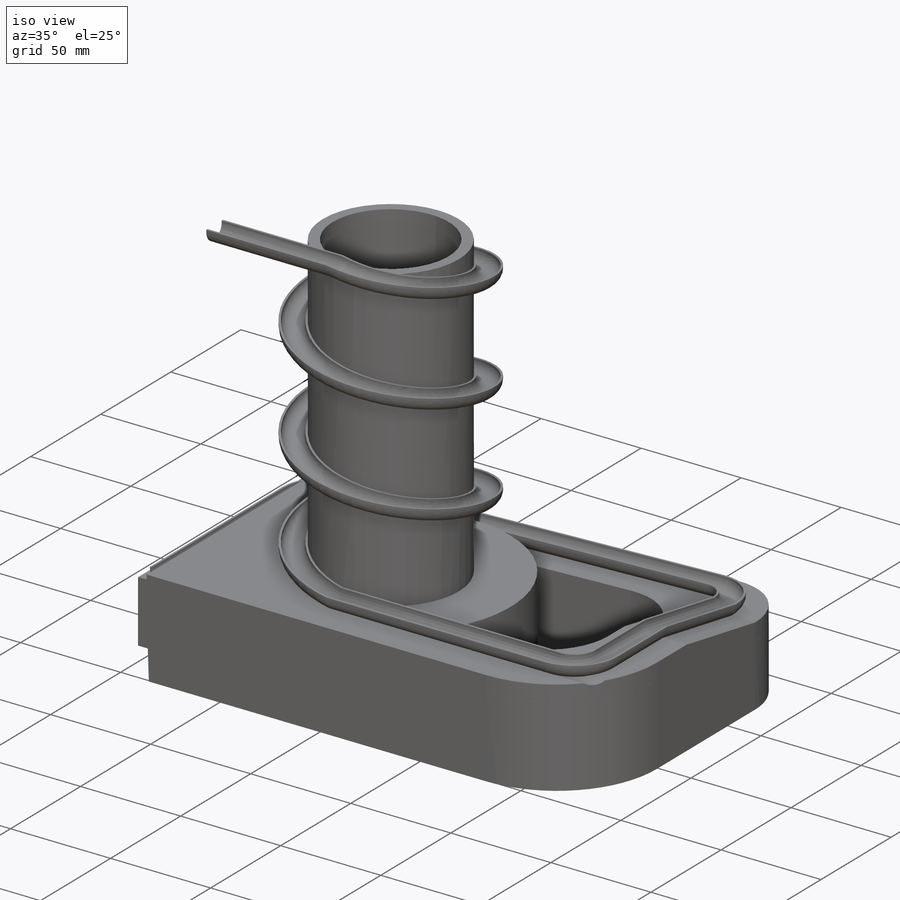
[diagram: iso view]
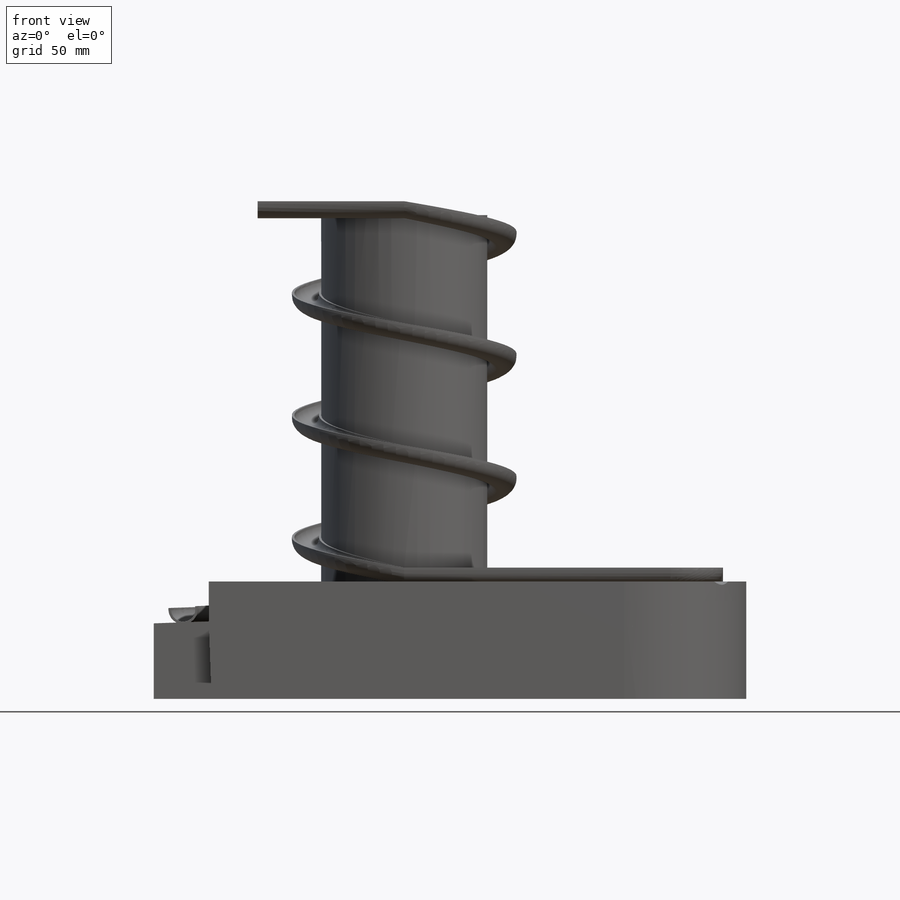
[diagram: front view]
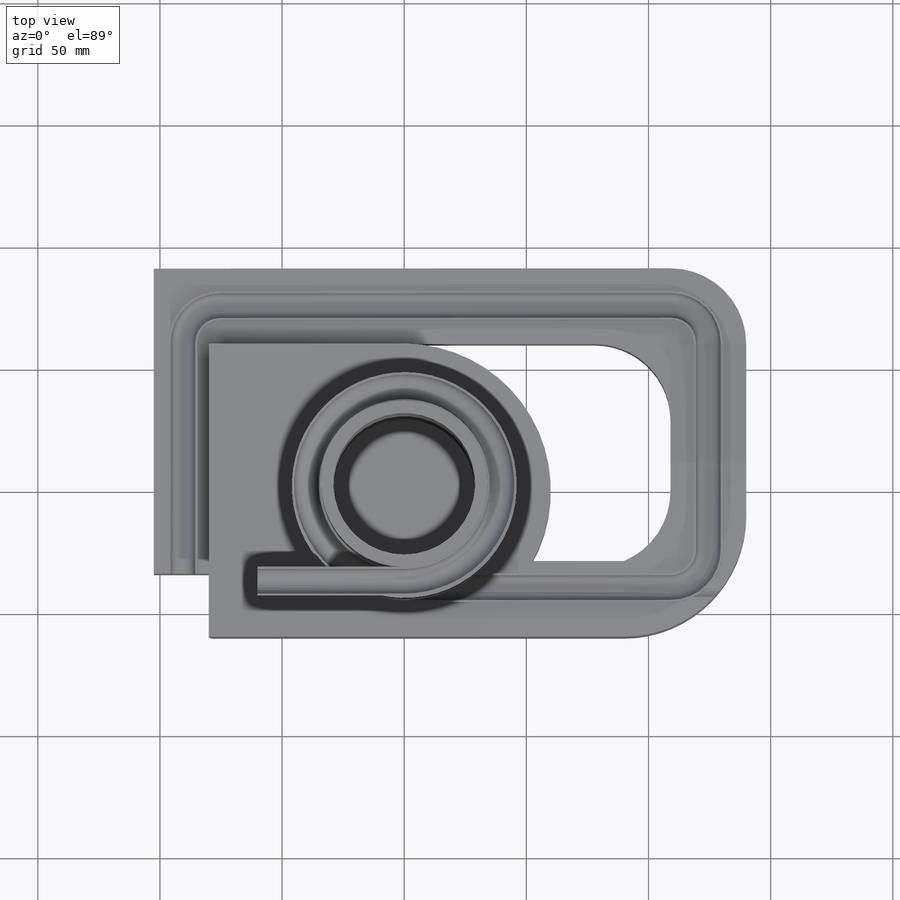
[diagram: top view]
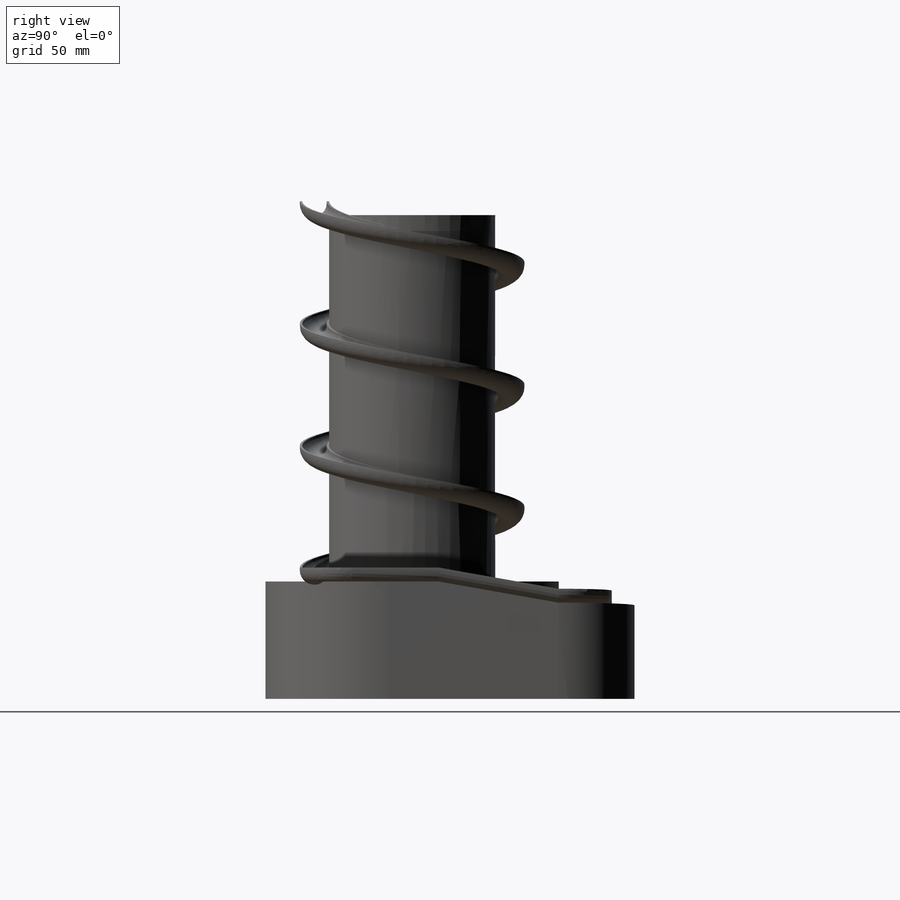
[diagram: right view]
SOLIDWORKS PART (.sldprt)
format: sldprt  version: not decoded by parser v0  size: 1,135,616 bytes
history: native  units: mm
features: sketch x28, cut_extrude x14, sweep x5, fillet x5, extrude x4, plane x3, material x1, helix x1 (+10 scaffold rows collapsed)
feature tree (71):
  scaffold x10  (default folders/planes/origin — collapsed)
  material  "材質 <未指定>"
  plane  "前基準面"
  plane  "上基準面"
  plane  "右基準面"
  sketch  "草圖1"  dims[D1=80.0mm]
  helix  "螺旋曲線/渦捲線1"  Pitch=150mm
  sketch  "草圖2"  dims[D1=10.0mm D2=12.0mm D3=1.0mm D4=1.0mm]
  sweep  "掃出2"
  sketch  "草圖3"  dims[D1=0.0mm]
  extrude  "伸長1"  Depth=100mm
  sketch  "草圖4"  dims[D1=0.0mm]
  extrude  "伸長2"  Depth=60mm
  sketch  "草圖6"  dims[D1=180.0mm D2=90.0mm D3=8.0mm]
  extrude  "伸長3"  Depth=150mm
  sketch  "草圖7"  dims[D1=68.0mm]
  extrude  "伸長4"  Depth=150mm
  sketch  "草圖8"  dims[D1=5.0mm]
  cut_extrude  "除料-伸長1"  [1 undecoded]
  sketch  "草圖10"  dims[c1.D1=120.0mm c1.D2=20.0mm c1.D3=5.0mm c1.D4=100.0mm c2.D4=~179.361031deg c3.D4=~89.330887mm c3.D2=0.0mm]
  cut_extrude  "除料-伸長3"  Depth=35mm
  sketch  "草圖11"  dims[D1=170.0mm]
  cut_extrude  "填料-伸長1"  Depth=40mm
  sketch  "草圖12"  dims[D1=0.0mm]
  cut_extrude  "填料-伸長2"  Depth=8mm
  sketch  "草圖13"  dims[D1=0.0mm]
  cut_extrude  "填料-伸長3"  Depth=50mm
  sketch  "草圖14"  dims[D2=31.0mm D3=31.0mm D1=0.0mm]
  cut_extrude  "填料-伸長4"  Depth=40mm
  fillet  "圓角1"  Radius=50mm
  fillet  "圓角2"  Radius=31mm
  sketch  "草圖15"  dims[c1.D1=8.0mm c1.D2=49.0mm c2.D2=10.0deg]
  cut_extrude  "填料-伸長5"  Depth=31mm
  sketch  "草圖16"  dims[c1.D1=8.0mm c1.D2=140.0mm c2.D2=2.0deg]
  cut_extrude  "填料-伸長10"  Depth=31mm
  sketch  "草圖17"  dims[D1=15.5mm]
  sketch  "草圖18"
  sketch  "草圖19"  dims[D1=15.0mm]
  sketch  "草圖20"  dims[D1=0.0mm]
  sweep  "掃出5"
  sketch  "草圖22"
  sweep  "掃出6"
  sketch  "草圖23"
  sweep  "掃出7"
  fillet  "圓角3"  Radius=31mm
  fillet  "圓角4"  Radius=31mm
  sketch  "草圖25"  dims[D1=0.0mm D2=0.0mm D3=0.0mm]
  cut_extrude  "填料-伸長12"  [1 undecoded]
  sketch  "草圖26"  dims[c1.D1=120.0mm c1.D2=~116.209486mm c2.D2=~4.334886deg c3.D2=~116.209486mm]
  cut_extrude  "填料-伸長13"  [1 undecoded]
  sketch  "草圖27"
  cut_extrude  "填料-伸長14"  [1 undecoded]
  fillet  "圓角5"  Radius=31mm
  sketch  "草圖28"  dims[D2=15.0mm D1=10.0mm]
  sketch  "草圖29"  dims[D1=0.0mm]
  sweep  "掃出8"
  sketch  "草圖30"
  cut_extrude  "除料-伸長4"  Depth=134mm
  sketch  "草圖32"  dims[D1=0.0mm]
  cut_extrude  "填料-伸長18"  [1 undecoded]
  sketch  "草圖33"
  cut_extrude  "除料-伸長5"  Depth=134mm
decode coverage: 41 of 57 modeling features carry decoded parameters
note: ~ marks probable driven/reference dimensions
note: 5 parameter values undecoded
summary: no parameter record found for 5 features; profile_refs inferred from adjacent sketches, not decoded
note: suppression state not decoded; provenance and decode notes live in map.json
